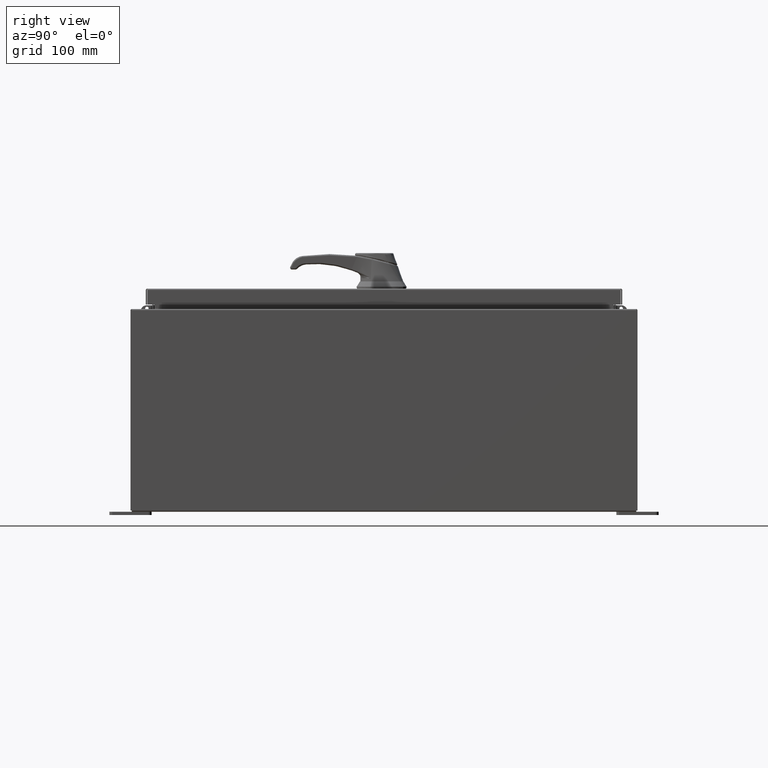
[diagram: clean part render]
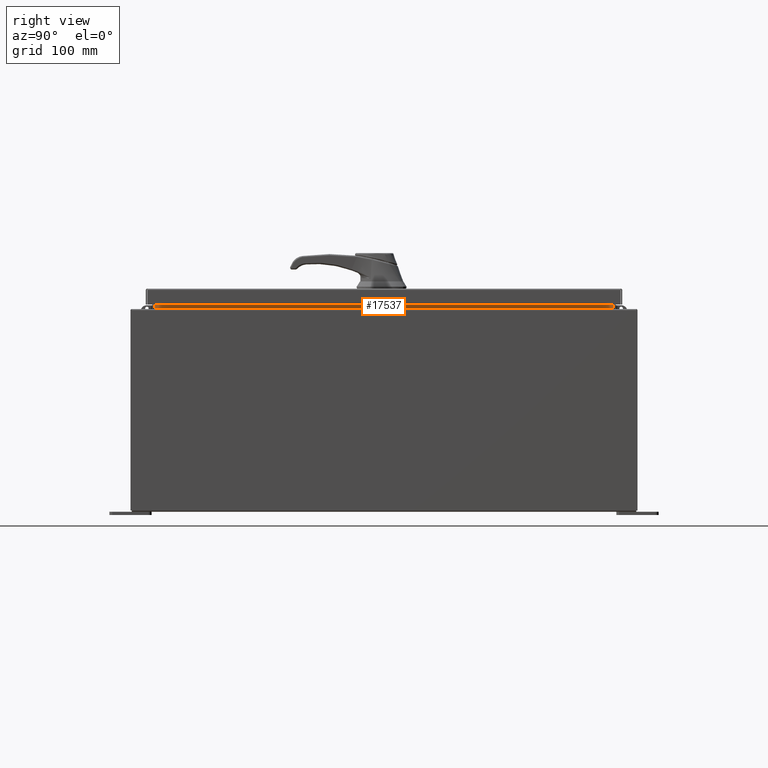
[diagram: same view with one face highlighted and labeled with its STEP entity id]
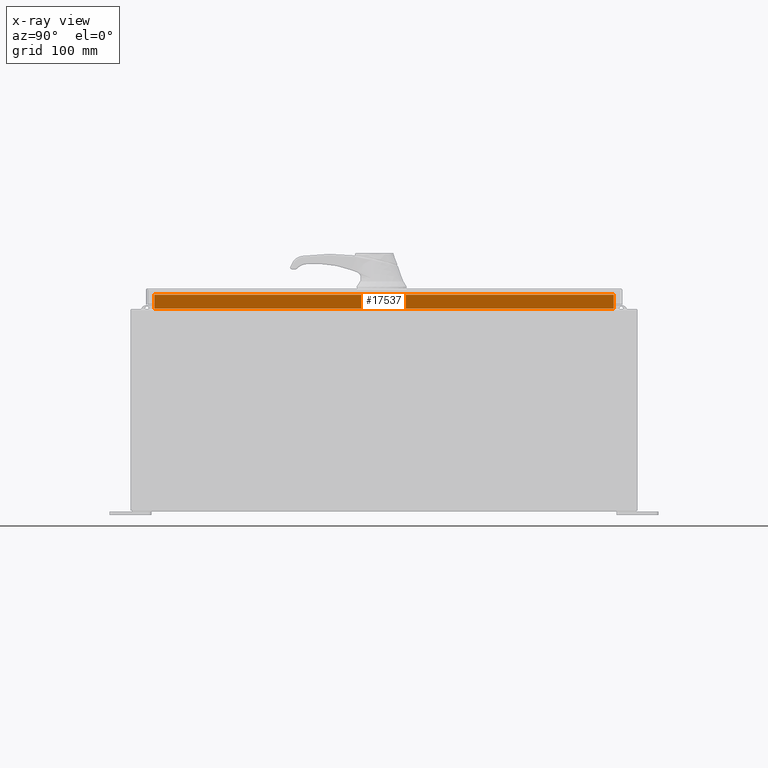
[diagram: x-ray of the same camera — body ghosted, the highlighted face saturated]
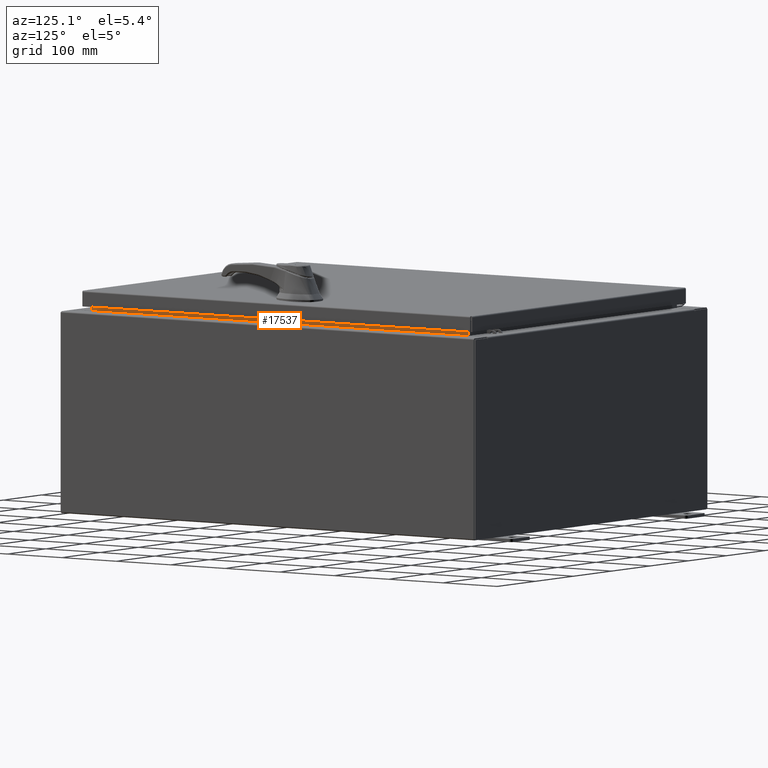
[diagram: same view with one face highlighted and labeled with its STEP entity id]
A machine part, right view. The second image highlights one B-rep face of the part: STEP entity #17537.
The next image is the same camera in x-ray: the body ghosted, the highlighted face saturated — about 0% of this face is hidden behind the body in this view.
A second angle (auxiliary view) of the same face is appended — the face is thin or edge-on in the first view.
In plain terms, the highlighted planar face has unit normal (1, 0, -0).
Its self-contained STEP definition (entity closure, byte-faithful):
#1037 = DIRECTION ( 'NONE',  ( 8.038541222736223700E-017, -1.000000000000000000, 1.607708244547244700E-016 ) ) ;
#8640 = VERTEX_POINT ( 'NONE', #82199 ) ;
#13708 = AXIS2_PLACEMENT_3D ( 'NONE', #57408, #20916, #85015 ) ;
#15123 = LINE ( 'NONE', #81941, #63872 ) ;
#17537 = ADVANCED_FACE ( 'NONE', ( #46000 ), #75837, .T. ) ;
#17831 = DIRECTION ( 'NONE',  ( -4.723826639860386500E-015, -0.0000000000000000000, -1.000000000000000000 ) ) ;
#20916 = DIRECTION ( 'NONE',  ( 1.000000000000000000, 0.0000000000000000000, -4.723826639860386500E-015 ) ) ;
#23872 = EDGE_CURVE ( 'NONE', #107150, #27036, #24997, .T. ) ;
#24702 = ORIENTED_EDGE ( 'NONE', *, *, #23872, .F. ) ;
#24997 = LINE ( 'NONE', #57011, #76617 ) ;
#27036 = VERTEX_POINT ( 'NONE', #106534 ) ;
#27530 = CARTESIAN_POINT ( 'NONE',  ( 10.69970000000004300, -13.59374999999999800, 12.85060000000001100 ) ) ;
#29766 = DIRECTION ( 'NONE',  ( 0.0000000000000000000, 1.000000000000000000, 0.0000000000000000000 ) ) ;
#40889 = ORIENTED_EDGE ( 'NONE', *, *, #89130, .F. ) ;
#41940 = CARTESIAN_POINT ( 'NONE',  ( 10.69970000000003900, 13.59375000000000000, 11.93830000000001200 ) ) ;
#46000 = FACE_OUTER_BOUND ( 'NONE', #79278, .T. ) ;
#57011 = CARTESIAN_POINT ( 'NONE',  ( 10.69970000000004300, -13.59374999999999300, 12.76290000000001100 ) ) ;
#57408 = CARTESIAN_POINT ( 'NONE',  ( 10.69969999999998200, 0.0000000000000000000, -5.054352789851408700E-014 ) ) ;
#60449 = CARTESIAN_POINT ( 'NONE',  ( 10.69970000000004300, -13.59374999999999800, 12.76290000000001100 ) ) ;
#63872 = VECTOR ( 'NONE', #17831, 39.37007874015748100 ) ;
#65086 = VERTEX_POINT ( 'NONE', #41940 ) ;
#67440 = ORIENTED_EDGE ( 'NONE', *, *, #86042, .F. ) ;
#68578 = VECTOR ( 'NONE', #1037, 39.37007874015748100 ) ;
#73890 = LINE ( 'NONE', #27530, #98201 ) ;
#75837 = PLANE ( 'NONE',  #13708 ) ;
#76617 = VECTOR ( 'NONE', #29766, 39.37007874015748100 ) ;
#79278 = EDGE_LOOP ( 'NONE', ( #40889, #24702, #82542, #67440 ) ) ;
#81941 = CARTESIAN_POINT ( 'NONE',  ( 10.69970000000003900, 13.59374999999999800, 11.92530000000000900 ) ) ;
#82199 = CARTESIAN_POINT ( 'NONE',  ( 10.69970000000003900, -13.59375000000000000, 11.93830000000001200 ) ) ;
#82542 = ORIENTED_EDGE ( 'NONE', *, *, #93928, .F. ) ;
#85015 = DIRECTION ( 'NONE',  ( -4.723826639860386500E-015, 0.0000000000000000000, -1.000000000000000000 ) ) ;
#86042 = EDGE_CURVE ( 'NONE', #65086, #8640, #117218, .T. ) ;
#89130 = EDGE_CURVE ( 'NONE', #27036, #65086, #15123, .T. ) ;
#91613 = DIRECTION ( 'NONE',  ( 4.723826639860397600E-015, -0.0000000000000000000, 1.000000000000000000 ) ) ;
#93928 = EDGE_CURVE ( 'NONE', #8640, #107150, #73890, .T. ) ;
#98201 = VECTOR ( 'NONE', #91613, 39.37007874015748100 ) ;
#106534 = CARTESIAN_POINT ( 'NONE',  ( 10.69970000000004300, 13.59374999999999300, 12.76290000000001100 ) ) ;
#107150 = VERTEX_POINT ( 'NONE', #60449 ) ;
#110659 = CARTESIAN_POINT ( 'NONE',  ( 10.69970000000004100, 13.59374999999999800, 11.93830000000000900 ) ) ;
#117218 = LINE ( 'NONE', #110659, #68578 ) ;